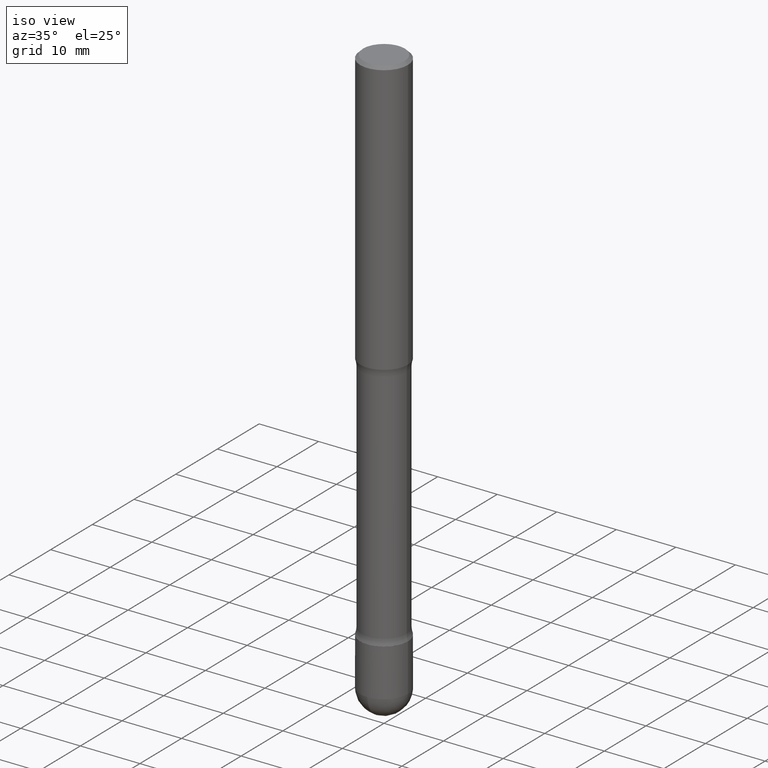
[diagram: clean part render]
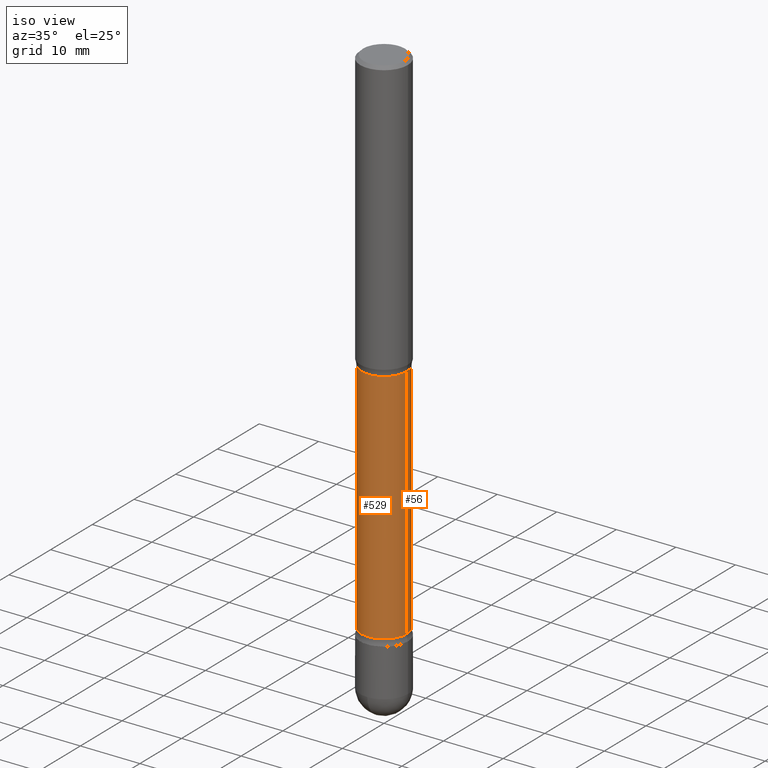
[diagram: same view with one multi-face feature highlighted, each face labeled with its STEP entity id]
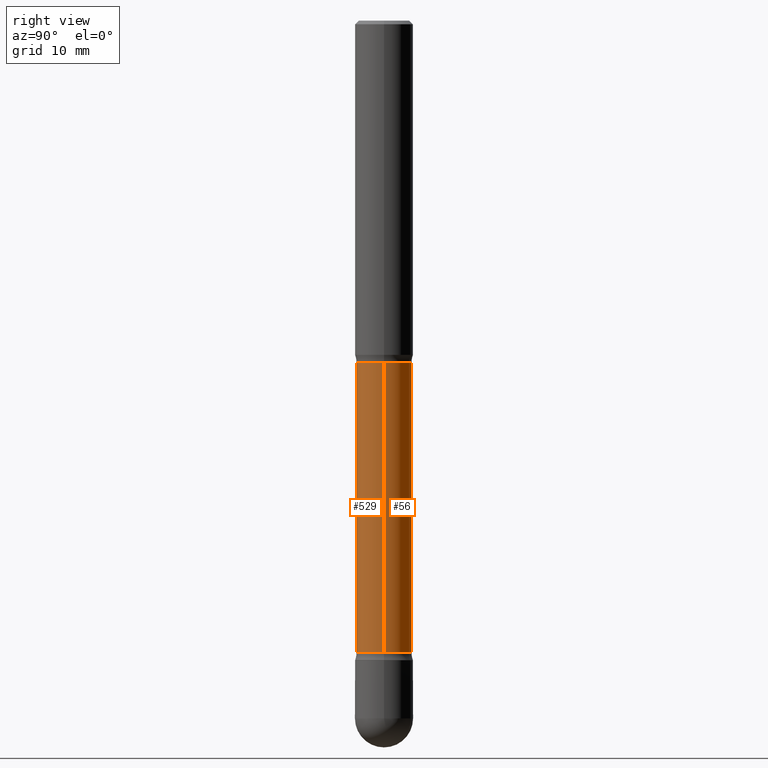
[diagram: same view with one multi-face feature highlighted, each face labeled with its STEP entity id]
A machine part, iso view. The highlighted faces form ONE feature: a constant-radius fillet chain: 2 tangent blend faces with common blend radius 3.81 mm. The faces share edges in the B-rep.
A second angle (right view) of the same feature is appended — it is thin or edge-on in the first view.
Their STEP definitions:
[1] entity #529 (Cylinder):
#14 = ORIENTED_EDGE ( 'NONE', *, *, #124, .F. ) ;
#54 = CARTESIAN_POINT ( 'NONE',  ( 4.533035439980052208E-29, -6.471973229417174909E-15, -1.853646805273080567 ) ) ;
#87 = CARTESIAN_POINT ( 'NONE',  ( -0.1499999999999998557, -1.104914184490302373E-14, -3.464599999999999902 ) ) ;
#107 = DIRECTION ( 'NONE',  ( 2.445468806185136597E-29, -3.491481338843145583E-15, -1.000000000000000000 ) ) ;
#121 = VERTEX_POINT ( 'NONE', #201 ) ;
#124 = EDGE_CURVE ( 'NONE', #121, #457, #561, .T. ) ;
#139 = CYLINDRICAL_SURFACE ( 'NONE', #281, 0.1499999999999998557 ) ;
#140 = CARTESIAN_POINT ( 'NONE',  ( 8.368279793930256495E-29, -1.194768572178372876E-14, -3.421953194726920611 ) ) ;
#141 = CIRCLE ( 'NONE', #203, 0.1499999999999997446 ) ;
#156 = CIRCLE ( 'NONE', #212, 0.1500000000000000222 ) ;
#159 = DIRECTION ( 'NONE',  ( 2.445468806185136597E-29, -3.491481338843145583E-15, -1.000000000000000000 ) ) ;
#164 = CARTESIAN_POINT ( 'NONE',  ( 0.1499999999999998557, -1.312566094622169094E-14, -3.464599999999999902 ) ) ;
#173 = VECTOR ( 'NONE', #306, 39.37007874015748143 ) ;
#201 = CARTESIAN_POINT ( 'NONE',  ( 0.1500000000000000222, -7.452324534188433652E-15, -1.853646805273080567 ) ) ;
#203 = AXIS2_PLACEMENT_3D ( 'NONE', #140, #107, #544 ) ;
#205 = EDGE_CURVE ( 'NONE', #457, #566, #141, .T. ) ;
#206 = ORIENTED_EDGE ( 'NONE', *, *, #242, .T. ) ;
#212 = AXIS2_PLACEMENT_3D ( 'NONE', #54, #455, #227 ) ;
#227 = DIRECTION ( 'NONE',  ( -1.000000000000000000, 6.982962677686266711E-15, 0.000000000000000000 ) ) ;
#242 = EDGE_CURVE ( 'NONE', #121, #462, #156, .T. ) ;
#266 = VECTOR ( 'NONE', #490, 39.37007874015748143 ) ;
#267 = FACE_OUTER_BOUND ( 'NONE', #341, .T. ) ;
#270 = CARTESIAN_POINT ( 'NONE',  ( -0.1500000000000000222, -5.424528827764234902E-15, -1.853646805273080567 ) ) ;
#281 = AXIS2_PLACEMENT_3D ( 'NONE', #418, #159, #562 ) ;
#301 = ORIENTED_EDGE ( 'NONE', *, *, #503, .T. ) ;
#306 = DIRECTION ( 'NONE',  ( 2.445468806185136877E-29, -3.491481338843145188E-15, -1.000000000000000000 ) ) ;
#331 = CARTESIAN_POINT ( 'NONE',  ( -0.1499999999999997446, -1.090024132013079034E-14, -3.421953194726920611 ) ) ;
#341 = EDGE_LOOP ( 'NONE', ( #14, #206, #301, #377 ) ) ;
#377 = ORIENTED_EDGE ( 'NONE', *, *, #205, .F. ) ;
#407 = LINE ( 'NONE', #87, #266 ) ;
#418 = CARTESIAN_POINT ( 'NONE',  ( 8.472571225909024784E-29, -1.209658624655596216E-14, -3.464599999999999902 ) ) ;
#455 = DIRECTION ( 'NONE',  ( 2.445468806185136597E-29, -3.491481338843145583E-15, -1.000000000000000000 ) ) ;
#457 = VERTEX_POINT ( 'NONE', #485 ) ;
#462 = VERTEX_POINT ( 'NONE', #270 ) ;
#485 = CARTESIAN_POINT ( 'NONE',  ( 0.1499999999999997446, -1.023890417526618062E-14, -3.421953194726920611 ) ) ;
#490 = DIRECTION ( 'NONE',  ( 2.445468806185136877E-29, -3.491481338843145188E-15, -1.000000000000000000 ) ) ;
#503 = EDGE_CURVE ( 'NONE', #462, #566, #407, .T. ) ;
#529 = ADVANCED_FACE ( 'NONE', ( #267 ), #139, .T. ) ;
#544 = DIRECTION ( 'NONE',  ( -1.000000000000000000, 6.982962677686266711E-15, 0.000000000000000000 ) ) ;
#561 = LINE ( 'NONE', #164, #173 ) ;
#562 = DIRECTION ( 'NONE',  ( -1.000000000000000000, 6.982962677686261977E-15, 0.000000000000000000 ) ) ;
#566 = VERTEX_POINT ( 'NONE', #331 ) ;
[2] entity #56 (Cylinder):
#3 = CYLINDRICAL_SURFACE ( 'NONE', #61, 0.1499999999999998557 ) ;
#9 = DIRECTION ( 'NONE',  ( -1.000000000000000000, 6.982962677686261977E-15, 0.000000000000000000 ) ) ;
#41 = CIRCLE ( 'NONE', #360, 0.1499999999999997446 ) ;
#56 = ADVANCED_FACE ( 'NONE', ( #257 ), #3, .T. ) ;
#61 = AXIS2_PLACEMENT_3D ( 'NONE', #89, #310, #9 ) ;
#87 = CARTESIAN_POINT ( 'NONE',  ( -0.1499999999999998557, -1.104914184490302373E-14, -3.464599999999999902 ) ) ;
#89 = CARTESIAN_POINT ( 'NONE',  ( 8.472571225909024784E-29, -1.209658624655596216E-14, -3.464599999999999902 ) ) ;
#110 = ORIENTED_EDGE ( 'NONE', *, *, #503, .F. ) ;
#121 = VERTEX_POINT ( 'NONE', #201 ) ;
#124 = EDGE_CURVE ( 'NONE', #121, #457, #561, .T. ) ;
#134 = EDGE_CURVE ( 'NONE', #462, #121, #548, .T. ) ;
#164 = CARTESIAN_POINT ( 'NONE',  ( 0.1499999999999998557, -1.312566094622169094E-14, -3.464599999999999902 ) ) ;
#173 = VECTOR ( 'NONE', #306, 39.37007874015748143 ) ;
#176 = ORIENTED_EDGE ( 'NONE', *, *, #134, .T. ) ;
#198 = CARTESIAN_POINT ( 'NONE',  ( 8.368279793930256495E-29, -1.194768572178372876E-14, -3.421953194726920611 ) ) ;
#201 = CARTESIAN_POINT ( 'NONE',  ( 0.1500000000000000222, -7.452324534188433652E-15, -1.853646805273080567 ) ) ;
#257 = FACE_OUTER_BOUND ( 'NONE', #464, .T. ) ;
#266 = VECTOR ( 'NONE', #490, 39.37007874015748143 ) ;
#270 = CARTESIAN_POINT ( 'NONE',  ( -0.1500000000000000222, -5.424528827764234902E-15, -1.853646805273080567 ) ) ;
#295 = AXIS2_PLACEMENT_3D ( 'NONE', #339, #425, #565 ) ;
#306 = DIRECTION ( 'NONE',  ( 2.445468806185136877E-29, -3.491481338843145188E-15, -1.000000000000000000 ) ) ;
#310 = DIRECTION ( 'NONE',  ( 2.445468806185136597E-29, -3.491481338843145583E-15, -1.000000000000000000 ) ) ;
#331 = CARTESIAN_POINT ( 'NONE',  ( -0.1499999999999997446, -1.090024132013079034E-14, -3.421953194726920611 ) ) ;
#339 = CARTESIAN_POINT ( 'NONE',  ( 4.533035439980052208E-29, -6.471973229417174909E-15, -1.853646805273080567 ) ) ;
#342 = ORIENTED_EDGE ( 'NONE', *, *, #564, .F. ) ;
#360 = AXIS2_PLACEMENT_3D ( 'NONE', #198, #555, #509 ) ;
#407 = LINE ( 'NONE', #87, #266 ) ;
#425 = DIRECTION ( 'NONE',  ( 2.445468806185136597E-29, -3.491481338843145583E-15, -1.000000000000000000 ) ) ;
#457 = VERTEX_POINT ( 'NONE', #485 ) ;
#462 = VERTEX_POINT ( 'NONE', #270 ) ;
#464 = EDGE_LOOP ( 'NONE', ( #176, #474, #342, #110 ) ) ;
#474 = ORIENTED_EDGE ( 'NONE', *, *, #124, .T. ) ;
#485 = CARTESIAN_POINT ( 'NONE',  ( 0.1499999999999997446, -1.023890417526618062E-14, -3.421953194726920611 ) ) ;
#490 = DIRECTION ( 'NONE',  ( 2.445468806185136877E-29, -3.491481338843145188E-15, -1.000000000000000000 ) ) ;
#503 = EDGE_CURVE ( 'NONE', #462, #566, #407, .T. ) ;
#509 = DIRECTION ( 'NONE',  ( -1.000000000000000000, 6.982962677686266711E-15, 0.000000000000000000 ) ) ;
#548 = CIRCLE ( 'NONE', #295, 0.1500000000000000222 ) ;
#555 = DIRECTION ( 'NONE',  ( 2.445468806185136597E-29, -3.491481338843145583E-15, -1.000000000000000000 ) ) ;
#561 = LINE ( 'NONE', #164, #173 ) ;
#564 = EDGE_CURVE ( 'NONE', #566, #457, #41, .T. ) ;
#565 = DIRECTION ( 'NONE',  ( -1.000000000000000000, 6.982962677686266711E-15, 0.000000000000000000 ) ) ;
#566 = VERTEX_POINT ( 'NONE', #331 ) ;